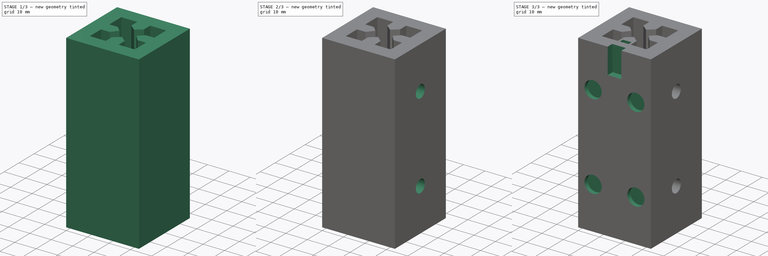
[diagram: build sequence overview — one tinted view per stage of 3, left to right]
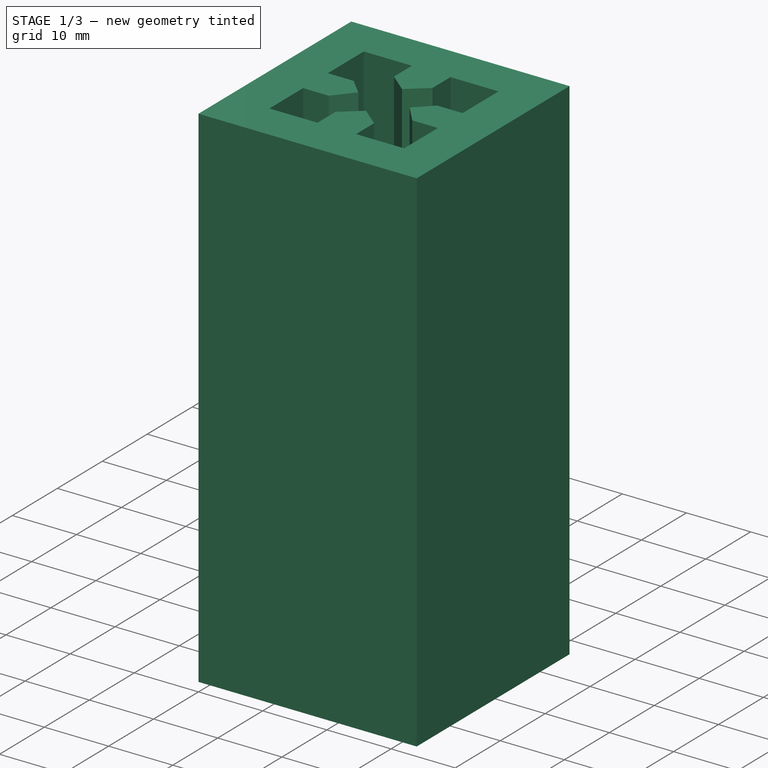
[diagram: stage 1 of 3 — iso view after this stage's code; geometry added in this stage tinted green]
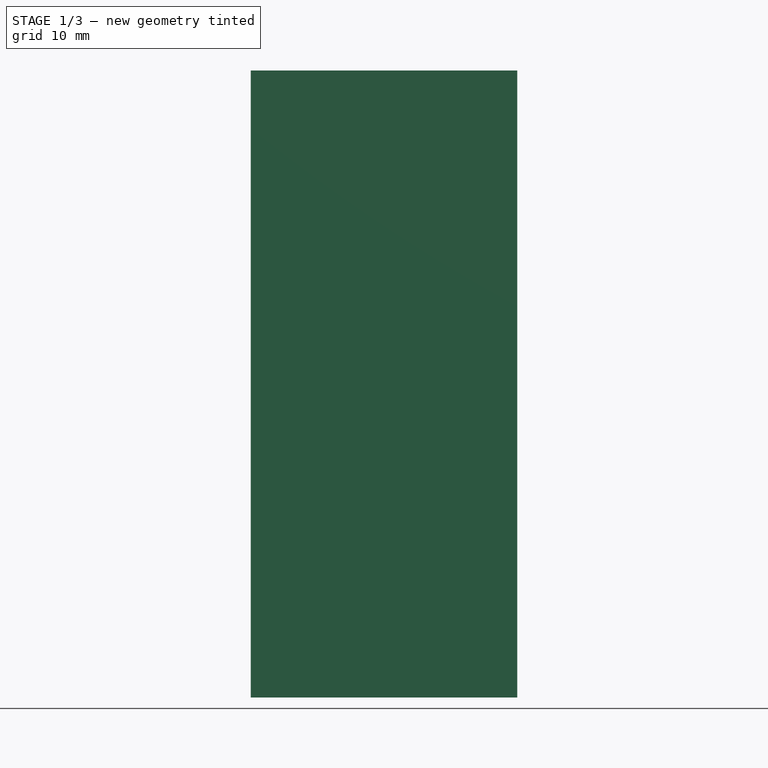
[diagram: stage 1 of 3 — front view after this stage's code; geometry added in this stage tinted green]
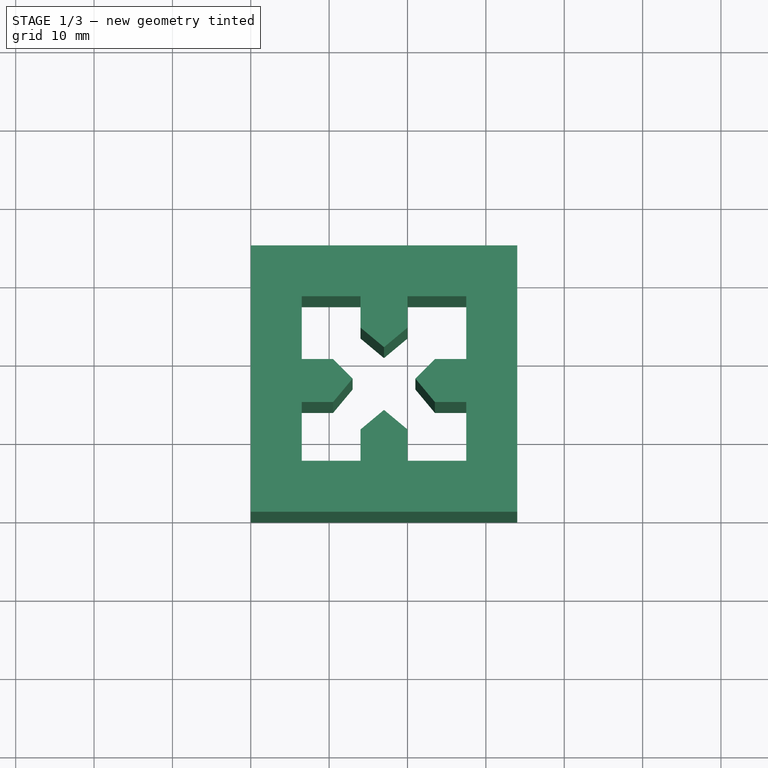
[diagram: stage 1 of 3 — top view after this stage's code; geometry added in this stage tinted green]
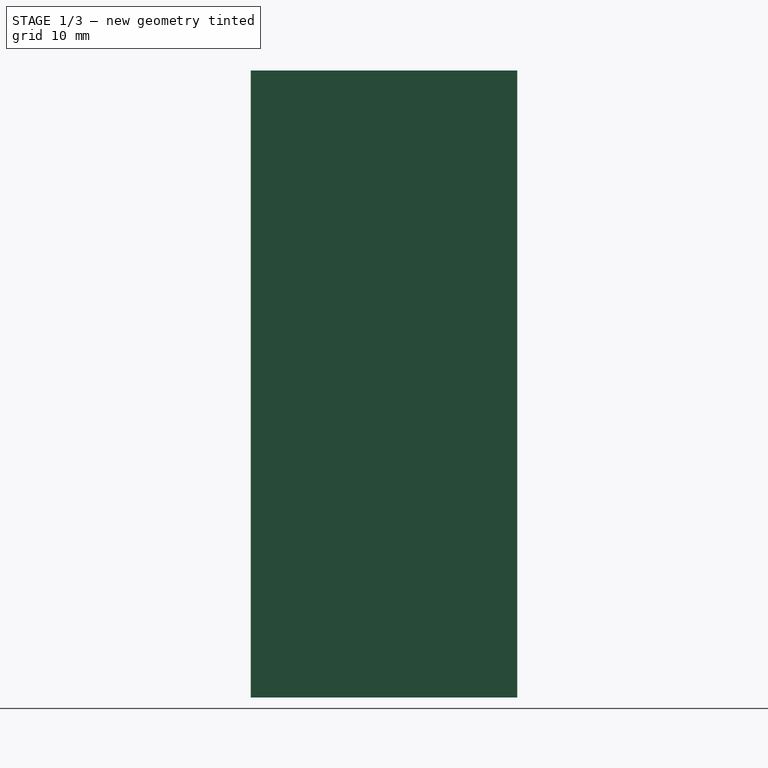
[diagram: stage 1 of 3 — right view after this stage's code; geometry added in this stage tinted green]
FCSTD DOCUMENT  (FreeCAD 0.17R9796 (Git))
Label: ts1g
License: All rights reserved
LicenseURL: http://en.wikipedia.org/wiki/All_rights_reserved
objects: Sketcher::SketchObject×8, PartDesign::Pocket×7, PartDesign::Pad×1, PartDesign::Body×1
note: 25 computed .brp shape members not serialized (recipe doc carries the construction recipe); baked Part::Feature solids carry a one-line shape summary decoded from their .brp

FEATURE [Sketcher::SketchObject] Sketch
  MapMode = 5
  Support = -> [XY_Plane]
  sketch-geometry (4):
    g0: LineSegment StartX=0 StartY=34 StartZ=0 EndX=34 EndY=34 EndZ=0
    g1: LineSegment StartX=34 StartY=34 StartZ=0 EndX=34 EndY=0 EndZ=0
    g2: LineSegment StartX=34 StartY=0 StartZ=0 EndX=0 EndY=0 EndZ=0
    g3: LineSegment StartX=0 StartY=0 StartZ=0 EndX=0 EndY=34 EndZ=0
  constraints (11):
    c: Coincident(g0,g1)
    c: Coincident(g1,g2)
    c: Coincident(g2,g3)
    c: Coincident(g3,g0)
    c: Horizontal(g0)
    c: Horizontal(g2)
    c: Vertical(g1)
    c: Vertical(g3)
    c: DistanceX(g0,g0) = 34
    c: DistanceY(g3,g3) = 34
    c: Coincident(g2,g-1)
FEATURE [PartDesign::Pad] Pad
  Length = 80
  Length2 = 100
  Profile = -> Sketch
  Type = 0
FEATURE [Sketcher::SketchObject] Sketch001
  MapMode = 5
  Placement = pos=(0,0,80) rot=(0,0,1;0rad)
  Support = -> [Pad]
  sketch-geometry (24):
    g0: LineSegment StartX=6.5 StartY=27.5 StartZ=0 EndX=14 EndY=27.5 EndZ=0
    g1: LineSegment StartX=14 StartY=27.5 StartZ=0 EndX=14 EndY=23.5 EndZ=0
    g2: LineSegment StartX=14 StartY=23.5 StartZ=0 EndX=17 EndY=21 EndZ=0
    g3: LineSegment StartX=17 StartY=21 StartZ=0 EndX=20 EndY=23.5 EndZ=0
    g4: LineSegment StartX=20 StartY=23.5 StartZ=0 EndX=20 EndY=27.5 EndZ=0
    g5: LineSegment StartX=20 StartY=27.5 StartZ=0 EndX=27.5 EndY=27.5 EndZ=0
    g6: LineSegment StartX=27.5 StartY=27.5 StartZ=0 EndX=27.5 EndY=19.5 EndZ=0
    g7: LineSegment StartX=27.5 StartY=19.5 StartZ=0 EndX=23.5 EndY=19.5 EndZ=0
    g8: LineSegment StartX=23.5 StartY=19.5 StartZ=0 EndX=21 EndY=17 EndZ=0
    g9: LineSegment StartX=21 StartY=17 StartZ=0 EndX=23.5 EndY=14 EndZ=0
    g10: LineSegment StartX=23.5 StartY=14 StartZ=0 EndX=27.5 EndY=14 EndZ=0
    g11: LineSegment StartX=27.5 StartY=14 StartZ=0 EndX=27.5 EndY=6.5 EndZ=0
    g12: LineSegment StartX=27.5 StartY=6.5 StartZ=0 EndX=20 EndY=6.5 EndZ=0
    g13: LineSegment StartX=20 StartY=6.5 StartZ=0 EndX=20 EndY=10.5 EndZ=0
    g14: LineSegment StartX=20 StartY=10.5 StartZ=0 EndX=17 EndY=13 EndZ=0
    g15: LineSegment StartX=17 StartY=13 StartZ=0 EndX=14 EndY=10.5 EndZ=0
    g16: LineSegment StartX=14 StartY=10.5 StartZ=0 EndX=14 EndY=6.5 EndZ=0
    g17: LineSegment StartX=14 StartY=6.5 StartZ=0 EndX=6.5 EndY=6.5 EndZ=0
    g18: LineSegment StartX=6.5 StartY=6.5 StartZ=0 EndX=6.5 EndY=14 EndZ=0
    g19: LineSegment StartX=6.5 StartY=14 StartZ=0 EndX=10.5 EndY=14 EndZ=0
    g20: LineSegment StartX=10.5 StartY=14 StartZ=0 EndX=13 EndY=17 EndZ=0
    g21: LineSegment StartX=13 StartY=17 StartZ=0 EndX=10.5 EndY=19.5 EndZ=0
    g22: LineSegment StartX=10.5 StartY=19.5 StartZ=0 EndX=6.5 EndY=19.5 EndZ=0
    g23: LineSegment StartX=6.5 StartY=19.5 StartZ=0 EndX=6.5 EndY=27.5 EndZ=0
  constraints (72):
    c: Coincident(g0,g1)
    c: Coincident(g1,g2)
    c: Coincident(g2,g3)
    c: Coincident(g3,g4)
    c: Coincident(g4,g5)
    c: Coincident(g5,g6)
    c: Coincident(g6,g7)
    c: Coincident(g7,g8)
    c: Coincident(g8,g9)
    c: Coincident(g9,g10)
    c: Coincident(g10,g11)
    c: Coincident(g11,g12)
    c: Coincident(g12,g13)
    c: Coincident(g13,g14)
    c: Coincident(g14,g15)
    c: Coincident(g15,g16)
    c: Coincident(g16,g17)
    c: Coincident(g17,g18)
    c: Coincident(g18,g19)
    c: Coincident(g19,g20)
    c: Coincident(g20,g21)
    c: Coincident(g21,g22)
    c: Coincident(g22,g23)
    c: Coincident(g23,g0)
    c: DistanceY(g-1,g0) = 27.5
    c: DistanceY(g0,g0) = 0
    c: DistanceY(g4,g0) = 0
    c: DistanceY(g5,g5) = 0
    c: DistanceX(g-1,g17) = 6.5
    c: DistanceY(g-1,g17) = 6.5
    c: DistanceX(g-1,g0) = 6.5
    c: DistanceX(g-1,g5) = 27.5
    c: DistanceY(g11,g17) = 0
    c: DistanceY(g12,g17) = 0
    c: DistanceY(g16,g17) = 0
    c: DistanceX(g5,g11) = 0
    c: DistanceX(g5,g6) = 0
    c: DistanceX(g5,g10) = 0
    c: DistanceX(g0,g0) = 7.5
    c: DistanceX(g0,g4) = 6
    c: DistanceX(g22,g0) = 0
    c: DistanceX(g22,g1) = 7.5
    c: DistanceX(g1,g3) = 6
    c: DistanceX(g17,g2) = 10.5
    c: DistanceY(g17,g22) = 13
    c: DistanceY(g17,g18) = 7.5
    c: DistanceY(g22,g21) = 0
    c: DistanceY(g21,g7) = 0
    c: DistanceX(g17,g16) = 7.5
    c: DistanceX(g16,g12) = 6
    c: DistanceX(g15,g16) = 0
    c: DistanceX(g12,g13) = 0
    c: DistanceY(g17,g15) = 4
    c: DistanceX(g17,g18) = 0
    c: DistanceY(g15,g13) = 0
    c: DistanceY(g17,g14) = 6.5
    c: DistanceX(g17,g14) = 10.5
    c: DistanceX(g22,g21) = 4
    c: DistanceX(g19,g21) = 0
    c: DistanceX(g22,g20) = 6.5
    c: DistanceY(g17,g20) = 10.5
    c: DistanceY(g19,g10) = 0
    c: DistanceY(g18,g9) = 0
    c: DistanceY(g18,g19) = 0
    c: DistanceY(g21,g6) = 0
    c: DistanceY(g1,g0) = 4
    c: DistanceY(g3,g1) = 0
    c: DistanceY(g2,g0) = 6.5
    c: DistanceX(g7,g6) = 4
    c: DistanceX(g9,g7) = 0
    c: DistanceX(g8,g6) = 6.5
    c: DistanceY(g20,g8) = 0
FEATURE [PartDesign::Pocket] Pocket
  BaseFeature = -> Pad
  Length = 80
  Profile = -> Sketch001
  Type = 0
FEATURE [Sketcher::SketchObject] Sketch002
  MapMode = 5
  Placement = pos=(0,0,0) rot=(0.57735,-0.57735,-0.57735;2.0944rad)
  Support = -> [Pocket]
  sketch-geometry (2):
    g0: Circle CenterX=-17 CenterY=60 CenterZ=0 NormalX=0 NormalY=0 NormalZ=1 Radius=3
    g1: Circle CenterX=-17 CenterY=20 CenterZ=0 NormalX=0 NormalY=0 NormalZ=1 Radius=3
  constraints (6):
    c: DistanceX(g1,g-1) = 17
    c: DistanceY(g-1,g1) = 20
    c: DistanceX(g0,g1) = 0
    c: DistanceY(g-1,g0) = 60
    c: Radius(g0) = 3
    c: Radius(g1) = 3
FEATURE [PartDesign::Pocket] Pocket001
  BaseFeature = -> Pocket
  Length = 4
  Profile = -> Sketch002
  Type = 0
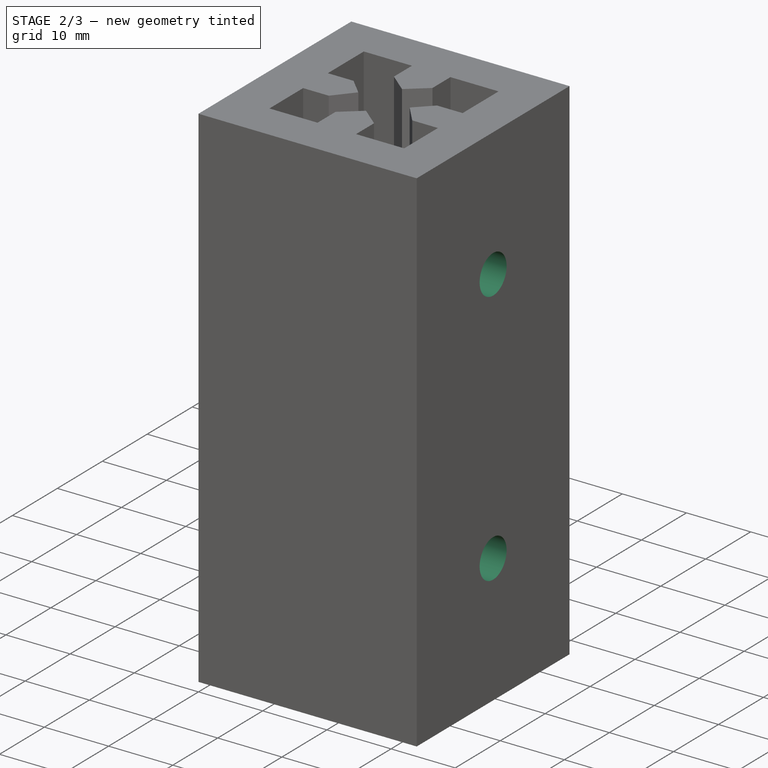
[diagram: stage 2 of 3 — iso view after this stage's code; geometry added in this stage tinted green]
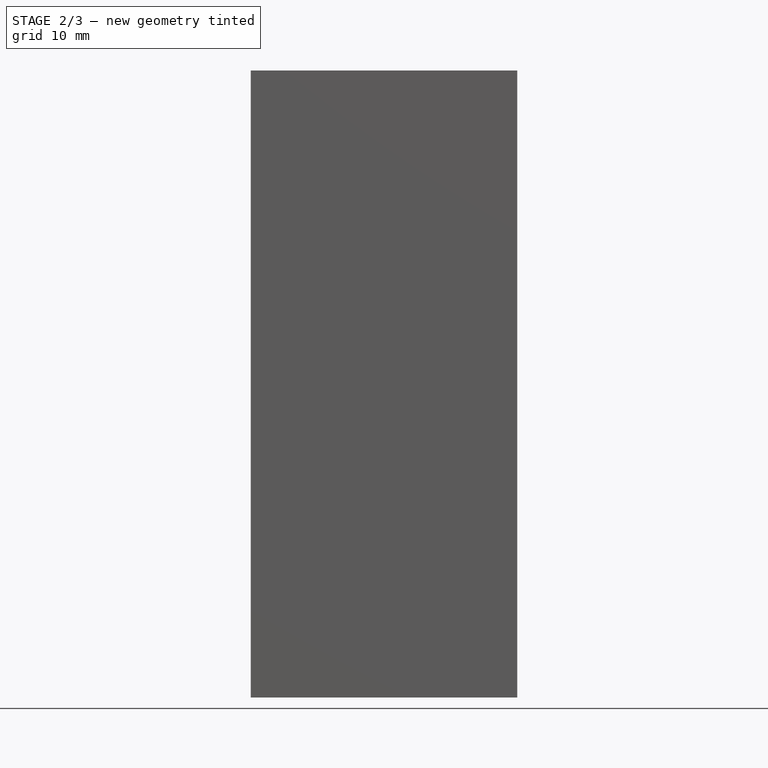
[diagram: stage 2 of 3 — front view after this stage's code; geometry added in this stage tinted green]
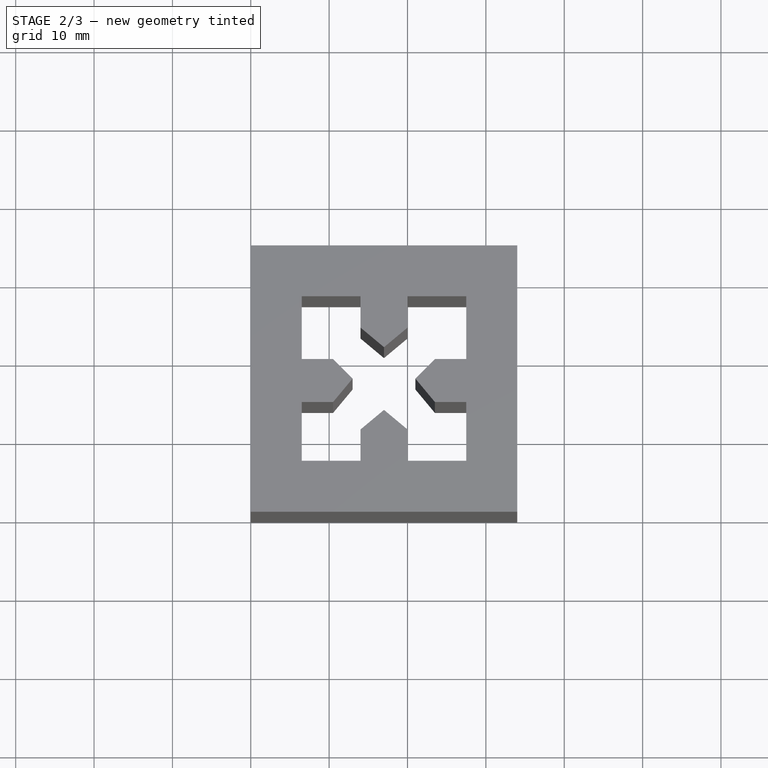
[diagram: stage 2 of 3 — top view after this stage's code; geometry added in this stage tinted green]
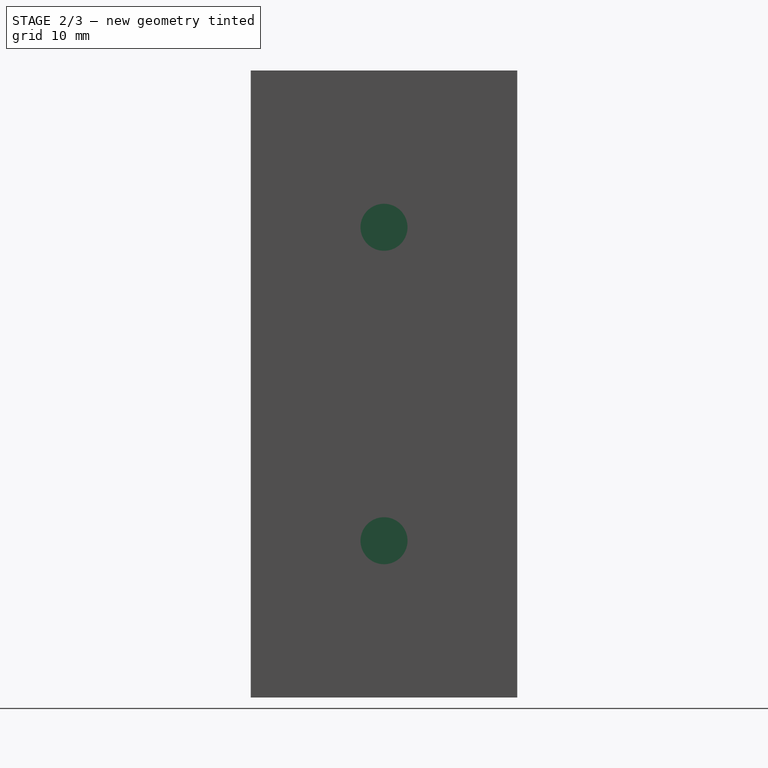
[diagram: stage 2 of 3 — right view after this stage's code; geometry added in this stage tinted green]
FEATURE [Sketcher::SketchObject] Sketch003
  MapMode = 5
  Placement = pos=(34,0,0) rot=(0.57735,0.57735,0.57735;2.0944rad)
  Support = -> [Pocket001]
  sketch-geometry (2):
    g0: Circle CenterX=17 CenterY=60 CenterZ=0 NormalX=0 NormalY=0 NormalZ=1 Radius=3
    g1: Circle CenterX=17 CenterY=20 CenterZ=0 NormalX=0 NormalY=0 NormalZ=1 Radius=3
  constraints (6):
    c: DistanceX(g-1,g1) = 17
    c: DistanceX(g0,g1) = 0
    c: DistanceY(g-1,g1) = 20
    c: DistanceY(g-1,g0) = 60
    c: Radius(g0) = 3
    c: Radius(g1) = 3
FEATURE [PartDesign::Pocket] Pocket002
  BaseFeature = -> Pocket001
  Length = 4
  Profile = -> Sketch003
  Type = 0
FEATURE [Sketcher::SketchObject] Sketch004
  MapMode = 5
  Placement = pos=(0,34,0) rot=(0,0.707107,0.707107;3.14159rad)
  Support = -> [Pocket002]
  sketch-geometry (4):
    g0: Circle CenterX=-27 CenterY=60 CenterZ=0 NormalX=0 NormalY=0 NormalZ=1 Radius=4
    g1: Circle CenterX=-7 CenterY=60 CenterZ=0 NormalX=0 NormalY=0 NormalZ=1 Radius=4
    g2: Circle CenterX=-27 CenterY=20 CenterZ=0 NormalX=0 NormalY=0 NormalZ=1 Radius=4
    g3: Circle CenterX=-7 CenterY=20 CenterZ=0 NormalX=0 NormalY=0 NormalZ=1 Radius=4
  constraints (12):
    c: DistanceY(g-1,g3) = 20
    c: DistanceY(g3,g2) = 0
    c: DistanceY(g-1,g1) = 60
    c: DistanceY(g1,g0) = 0
    c: DistanceX(g3,g-1) = 7
    c: DistanceX(g2,g3) = 20
    c: DistanceX(g1,g3) = 0
    c: DistanceX(g0,g2) = 0
    c: Radius(g0) = 4
    c: Radius(g1) = 4
    c: Radius(g3) = 4
    c: Radius(g2) = 4
FEATURE [PartDesign::Pocket] Pocket003
  BaseFeature = -> Pocket002
  Length = 2
  Profile = -> Sketch004
  Type = 0
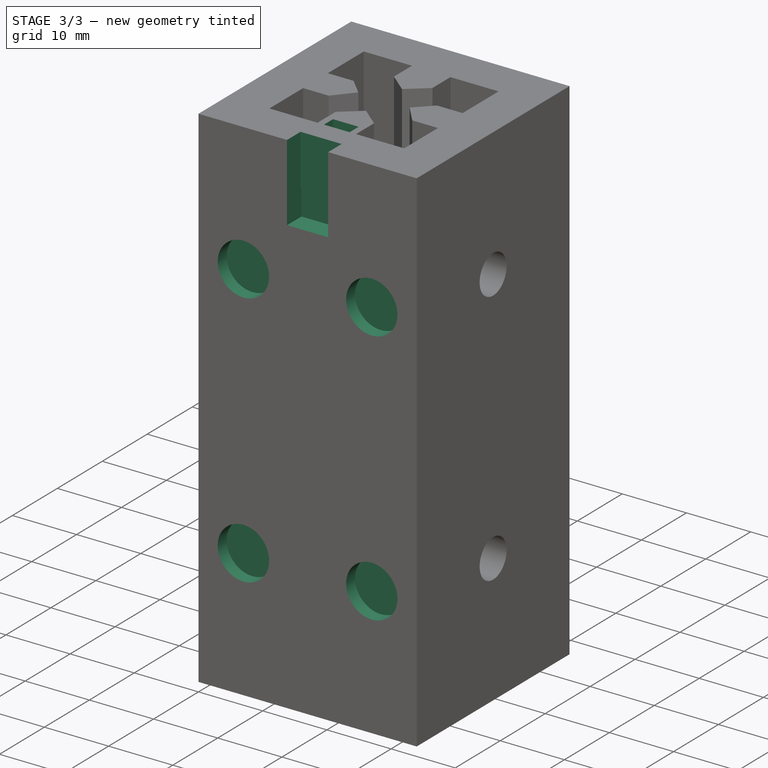
[diagram: stage 3 of 3 — iso view after this stage's code; geometry added in this stage tinted green]
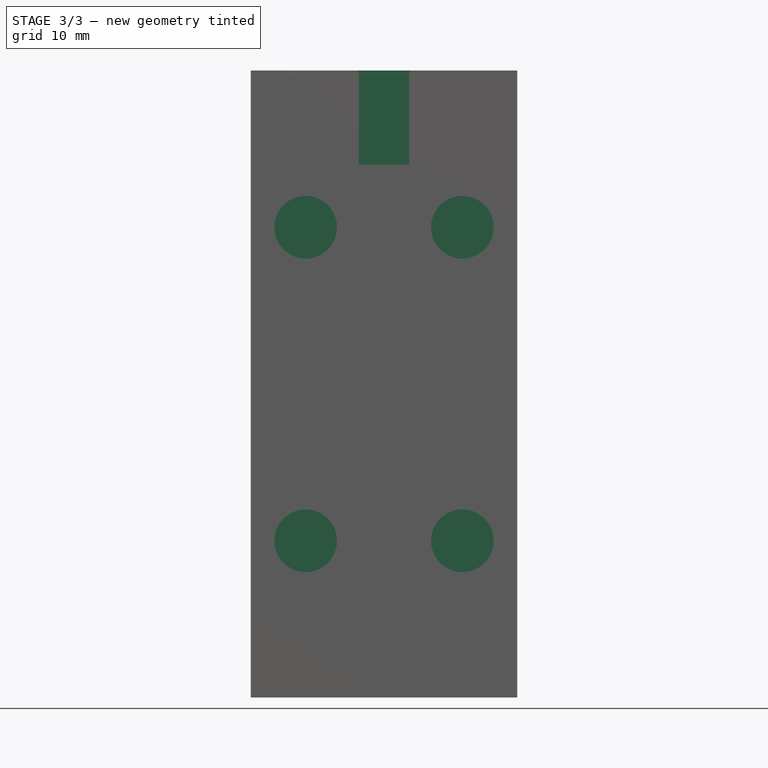
[diagram: stage 3 of 3 — front view after this stage's code; geometry added in this stage tinted green]
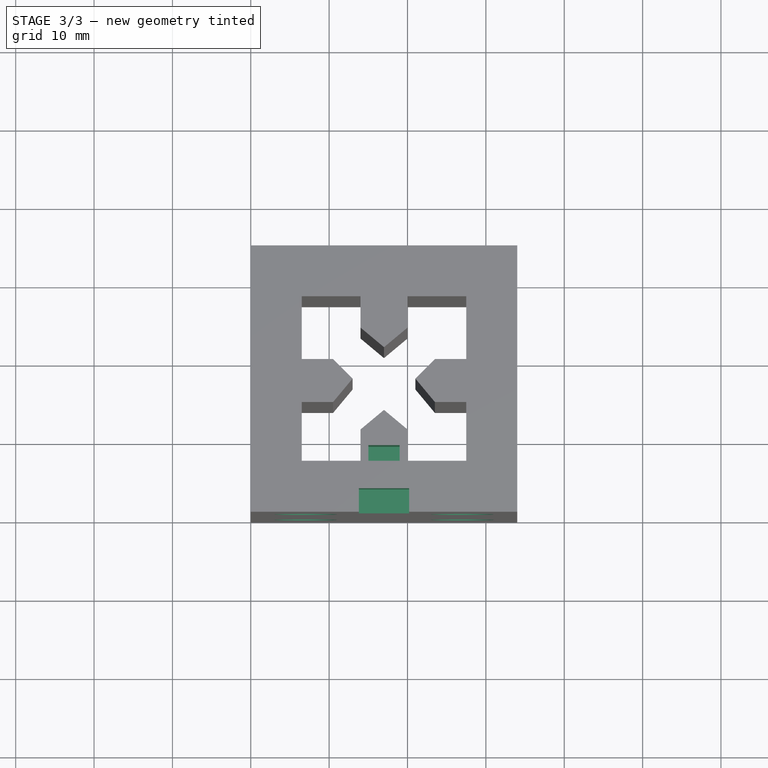
[diagram: stage 3 of 3 — top view after this stage's code; geometry added in this stage tinted green]
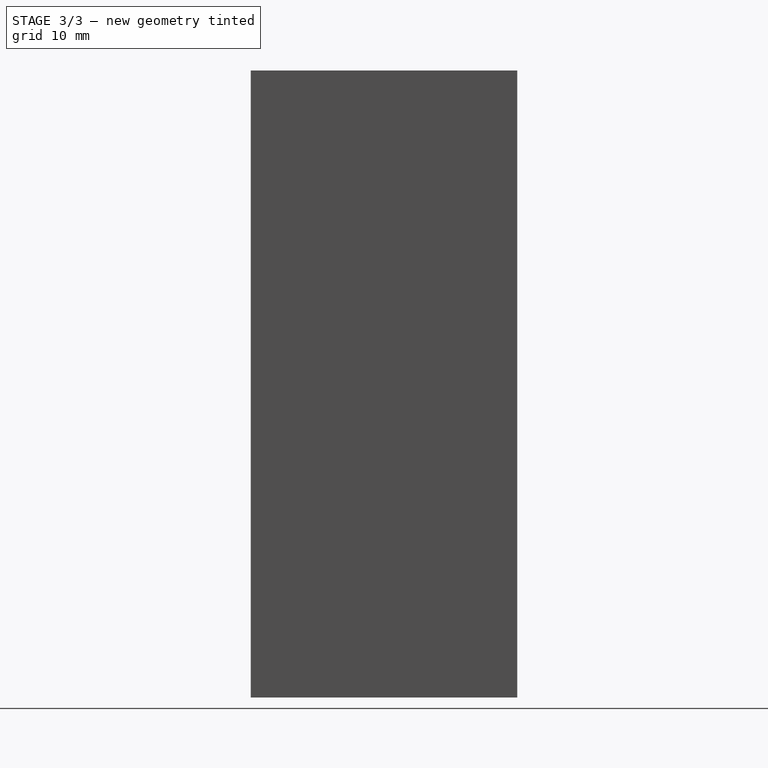
[diagram: stage 3 of 3 — right view after this stage's code; geometry added in this stage tinted green]
FEATURE [Sketcher::SketchObject] Sketch005
  MapMode = 5
  Placement = pos=(0,0,0) rot=(1,0,0;1.5708rad)
  Support = -> [Pocket003]
  sketch-geometry (4):
    g0: Circle CenterX=7 CenterY=60 CenterZ=0 NormalX=0 NormalY=0 NormalZ=1 Radius=4
    g1: Circle CenterX=27 CenterY=60 CenterZ=0 NormalX=0 NormalY=0 NormalZ=1 Radius=4
    g2: Circle CenterX=7 CenterY=20 CenterZ=0 NormalX=0 NormalY=0 NormalZ=1 Radius=4
    g3: Circle CenterX=27 CenterY=20 CenterZ=0 NormalX=0 NormalY=0 NormalZ=1 Radius=4
  constraints (12):
    c: DistanceY(g-1,g3) = 20
    c: DistanceY(g3,g2) = 0
    c: DistanceY(g-1,g0) = 60
    c: DistanceY(g0,g1) = 0
    c: DistanceX(g-1,g2) = 7
    c: DistanceX(g2,g0) = 0
    c: DistanceX(g2,g3) = 20
    c: DistanceX(g1,g3) = 0
    c: Radius(g0) = 4
    c: Equal(g0,g1)
    c: Equal(g0,g3)
    c: Equal(g0,g2)
FEATURE [PartDesign::Pocket] Pocket004
  BaseFeature = -> Pocket003
  Length = 2
  Profile = -> Sketch005
  Type = 0
FEATURE [Sketcher::SketchObject] Sketch006
  MapMode = 5
  Placement = pos=(0,0,80) rot=(0,0,1;0rad)
  Support = -> [Pocket004]
  sketch-geometry (8):
    g0: LineSegment StartX=13.8 StartY=3 StartZ=0 EndX=20.2 EndY=3 EndZ=0
    g1: LineSegment StartX=20.2 StartY=3 StartZ=0 EndX=20.2 EndY=0 EndZ=0
    g2: LineSegment StartX=20.2 StartY=0 StartZ=0 EndX=13.8 EndY=0 EndZ=0
    g3: LineSegment StartX=13.8 StartY=0 StartZ=0 EndX=13.8 EndY=3 EndZ=0
    g4: LineSegment StartX=15 StartY=8.5 StartZ=0 EndX=19 EndY=8.5 EndZ=0
    g5: LineSegment StartX=19 StartY=8.5 StartZ=0 EndX=19 EndY=6.5 EndZ=0
    g6: LineSegment StartX=19 StartY=6.5 StartZ=0 EndX=15 EndY=6.5 EndZ=0
    g7: LineSegment StartX=15 StartY=6.5 StartZ=0 EndX=15 EndY=8.5 EndZ=0
  constraints (24):
    c: Coincident(g0,g1)
    c: Coincident(g1,g2)
    c: Coincident(g2,g3)
    c: Coincident(g3,g0)
    c: Horizontal(g0)
    c: Horizontal(g2)
    c: Vertical(g1)
    c: Vertical(g3)
    c: Coincident(g4,g5)
    c: Coincident(g5,g6)
    c: Coincident(g6,g7)
    c: Coincident(g7,g4)
    c: Horizontal(g4)
    c: Horizontal(g6)
    c: Vertical(g5)
    c: Vertical(g7)
    c: DistanceY(g3,g3) = 3
    c: DistanceX(g0,g0) = 6.4
    c: DistanceY(g-1,g2) = 0
    c: DistanceX(g6,g6) = 4
    c: DistanceY(g-1,g6) = 6.5
    c: DistanceX(g-1,g2) = 13.8
    c: DistanceX(g-1,g6) = 15
    c: DistanceY(g5,g5) = 2
FEATURE [PartDesign::Pocket] Pocket005
  BaseFeature = -> Pocket004
  Length = 12
  Profile = -> Sketch006
  Type = 0
FEATURE [Sketcher::SketchObject] Sketch007
  MapMode = 5
  Placement = pos=(0,3,0) rot=(1,0,0;1.5708rad)
  Support = -> [Pocket005]
  sketch-geometry (4):
    g0: LineSegment StartX=13.8 StartY=72 StartZ=0 EndX=20.2 EndY=72 EndZ=0
    g1: LineSegment StartX=20.2 StartY=72 StartZ=0 EndX=20.2 EndY=68 EndZ=0
    g2: LineSegment StartX=20.2 StartY=68 StartZ=0 EndX=13.8 EndY=68 EndZ=0
    g3: LineSegment StartX=13.8 StartY=68 StartZ=0 EndX=13.8 EndY=72 EndZ=0
  constraints (12):
    c: Coincident(g0,g1)
    c: Coincident(g1,g2)
    c: Coincident(g2,g3)
    c: Coincident(g3,g0)
    c: Horizontal(g0)
    c: Horizontal(g2)
    c: Vertical(g1)
    c: Vertical(g3)
    c: DistanceX(g0,g0) = 6.4
    c: DistanceY(g1,g1) = 4
    c: DistanceX(g-1,g1) = 20.2
    c: DistanceY(g-1,g0) = 72
FEATURE [PartDesign::Pocket] Pocket006
  BaseFeature = -> Pocket005
  Length = 0.2
  Profile = -> Sketch007
  Type = 0
FEATURE [PartDesign::Body] Body
  Group = -> [Sketch,Pad,Sketch001,Pocket,Sketch002,Pocket001,Sketch003,Pocket002,Sketch004,Pocket003,Sketch005,Pocket004,Sketch006,Pocket005,Sketch007,Pocket006]
  Origin = -> BodyOrigin
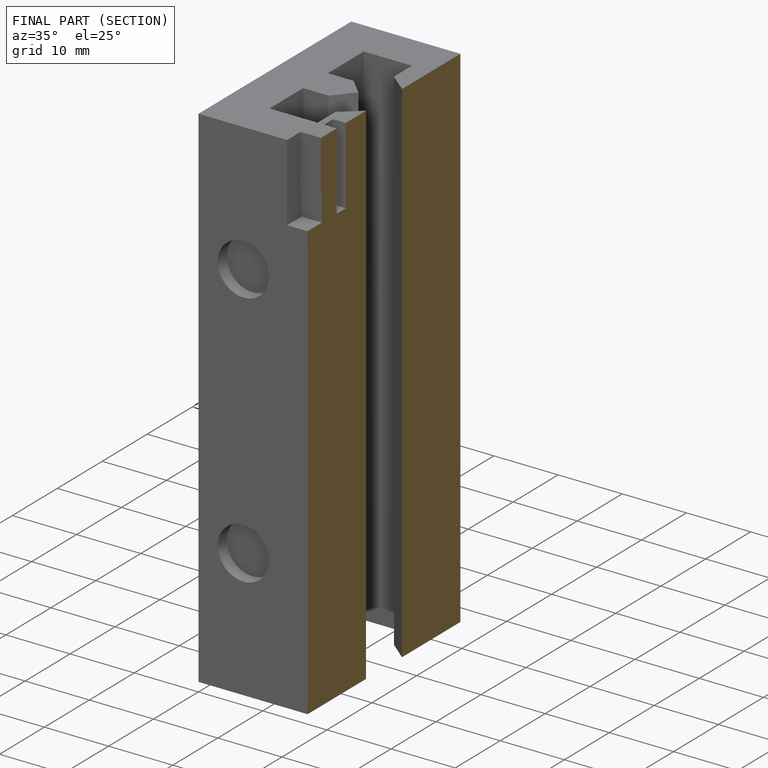
[diagram: finished part — half-section view (interior)]
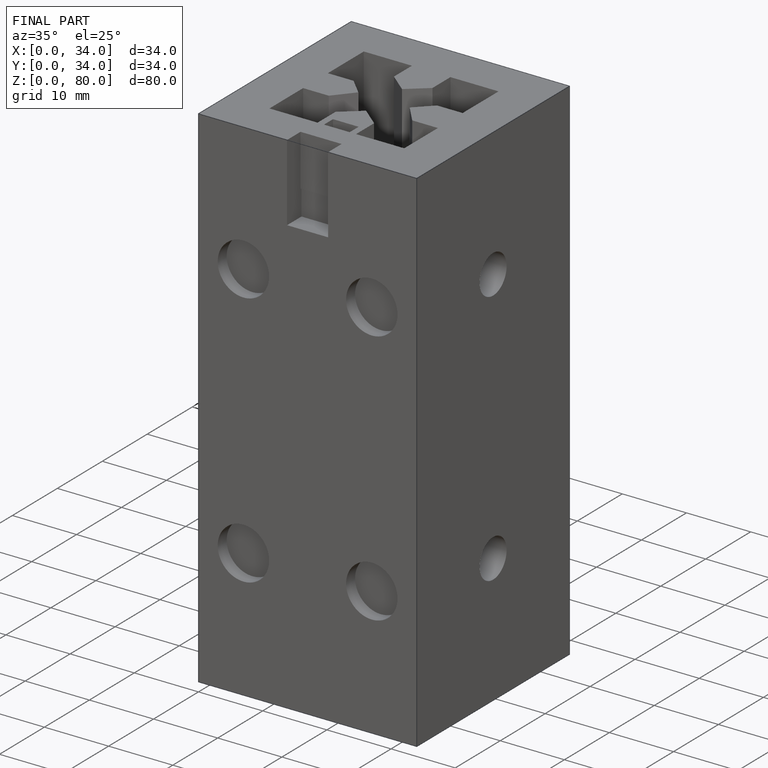
[diagram: finished part — iso view with bounding-box wireframe]
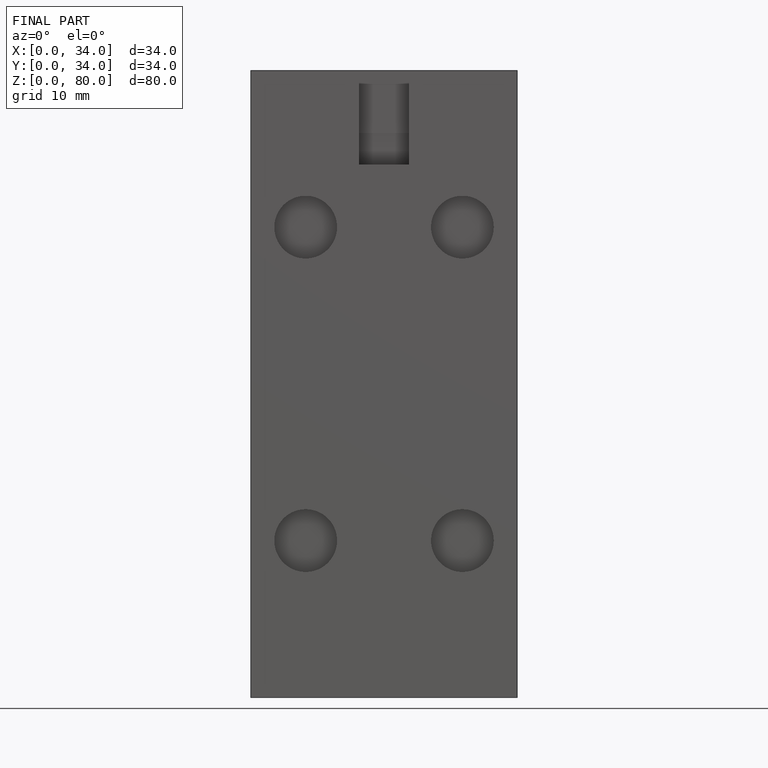
[diagram: finished part — front view with bounding-box wireframe]
